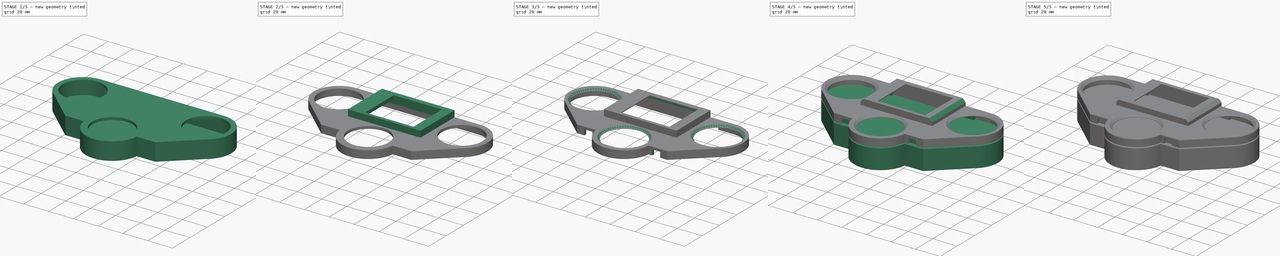
[diagram: build sequence overview — one tinted view per stage of 5, left to right]
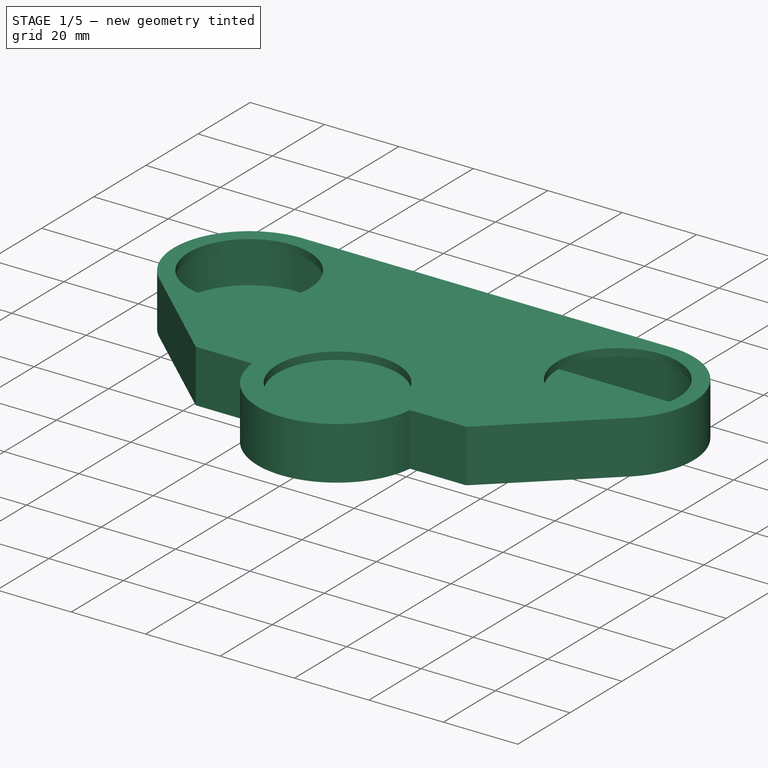
[diagram: stage 1 of 5 — iso view after this stage's code; geometry added in this stage tinted green]
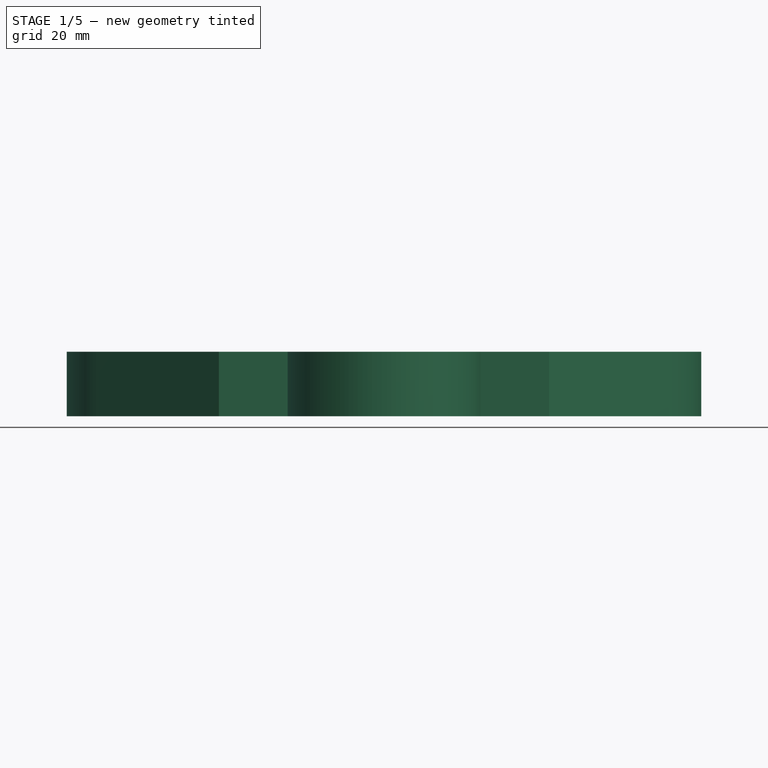
[diagram: stage 1 of 5 — front view after this stage's code; geometry added in this stage tinted green]
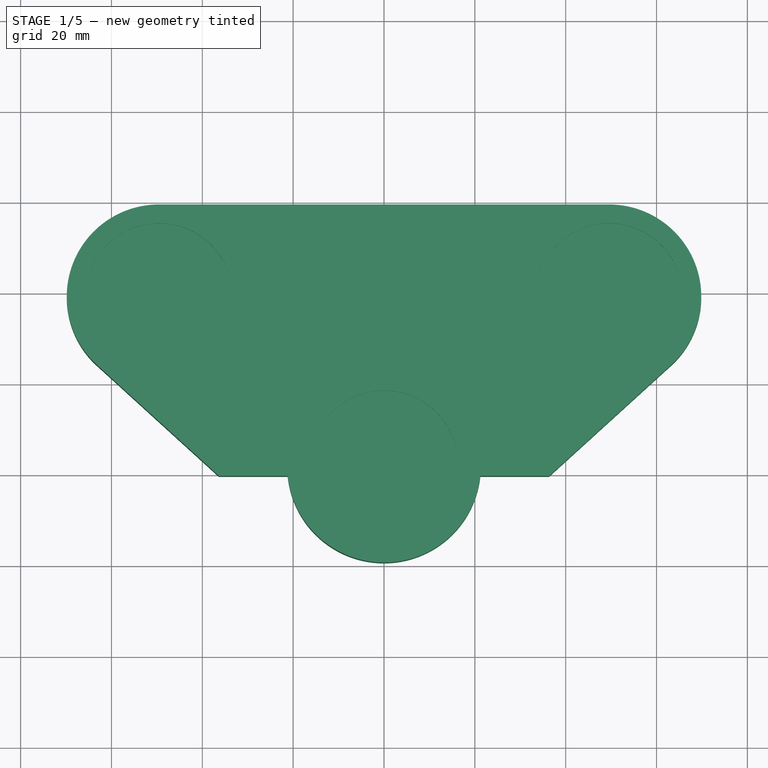
[diagram: stage 1 of 5 — top view after this stage's code; geometry added in this stage tinted green]
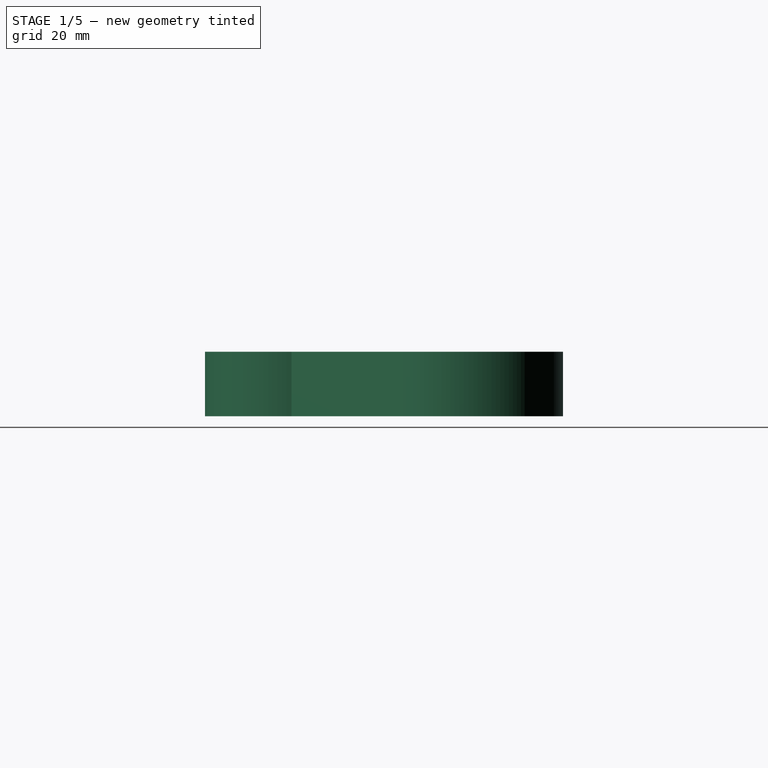
[diagram: stage 1 of 5 — right view after this stage's code; geometry added in this stage tinted green]
FCSTD DOCUMENT  (FreeCAD 0.16R6692 (Git))
Label: OTS2_3
License: All rights reserved
LicenseURL: http://en.wikipedia.org/wiki/All_rights_reserved
objects: Sketcher::SketchObject×10, Part::Feature×8, PartDesign::Pad×5, PartDesign::Pocket×5, Part::Cut×3, PartDesign::Chamfer×3, PartDesign::Fillet×3, Part::Offset×2, Part::Box×1
note: 50 computed .brp shape members not serialized (recipe doc carries the construction recipe); baked Part::Feature solids carry a one-line shape summary decoded from their .brp

FEATURE [PartDesign::Pad] Pad
  Length = 10.16
  Length2 = 100
  Placement = pos=(0,0,4.318) rot=(0,0,1;0rad)
  Reversed = true
  Sketch = -> Sketch
  Type = 0
FEATURE [Part::Offset] Offset
  Fill = false
  Intersection = true
  Join = 2
  Mode = 0
  SelfIntersection = false
  Source = -> Pad
  Value = 2.032
FEATURE [Part::Cut] Cut
  Base = -> Offset
  Tool = -> Pad
FEATURE [Sketcher::SketchObject] Sketch002
  Placement = pos=(0,0,6.35) rot=(0,0,1;0rad)
  Support = -> Cut [Face4]
  sketch-geometry (3):
    g0: Circle CenterX=-49.53 CenterY=19.05 CenterZ=0 NormalX=0 NormalY=0 NormalZ=1 Radius=16.256
    g1: Circle CenterX=49.53 CenterY=19.05 CenterZ=0 NormalX=0 NormalY=0 NormalZ=1 Radius=16.256
    g2: Circle CenterX=0 CenterY=-17.78 CenterZ=0 NormalX=0 NormalY=0 NormalZ=1 Radius=16.256
  constraints (8):
    c: Radius(g0) = 16.256
    c: Equal(g1,g0)
    c: Radius(g2) = 16.256
    c: DistanceX(g0,g1) = 99.06
    c: Symmetric(g0,g1,g-2)
    c: DistanceX(g2,g-1) = 0
    c: DistanceY(g2,g1) = 36.83
    c: DistanceY(g-1,g0) = 19.05
FEATURE [PartDesign::Pocket] Pocket
  Length = 4.99999
  Sketch = -> Sketch002
  Type = 2
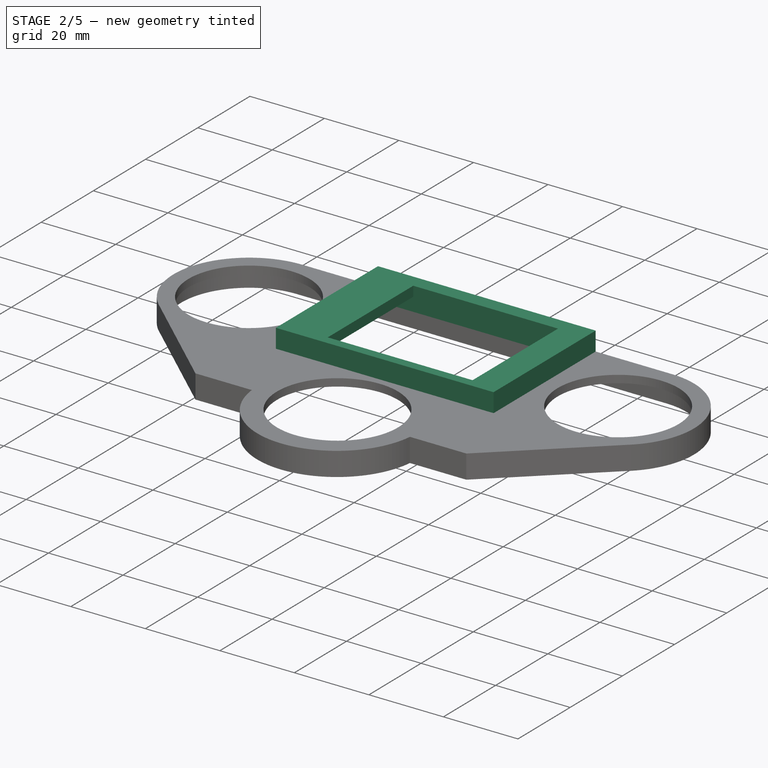
[diagram: stage 2 of 5 — iso view after this stage's code; geometry added in this stage tinted green]
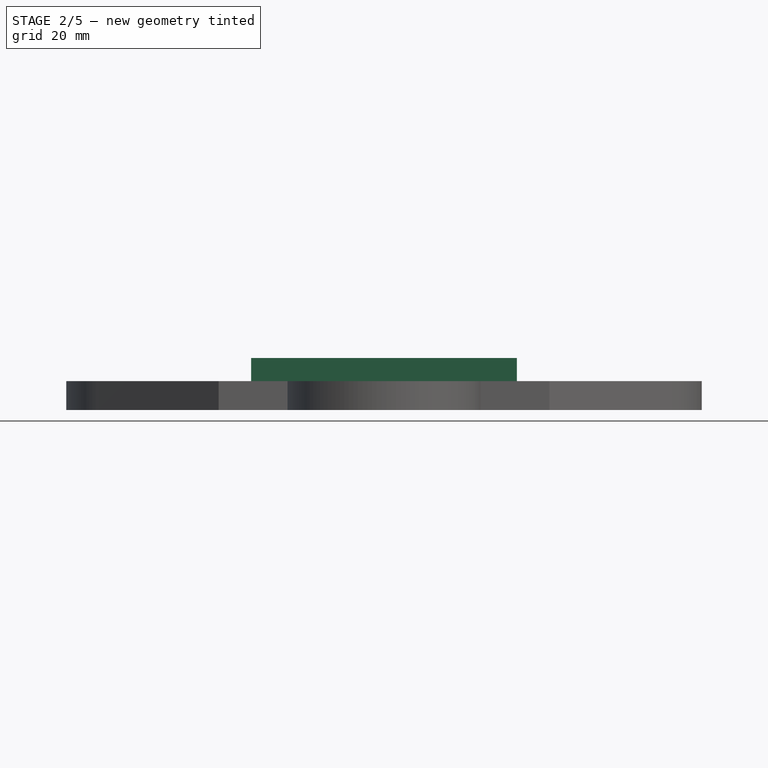
[diagram: stage 2 of 5 — front view after this stage's code; geometry added in this stage tinted green]
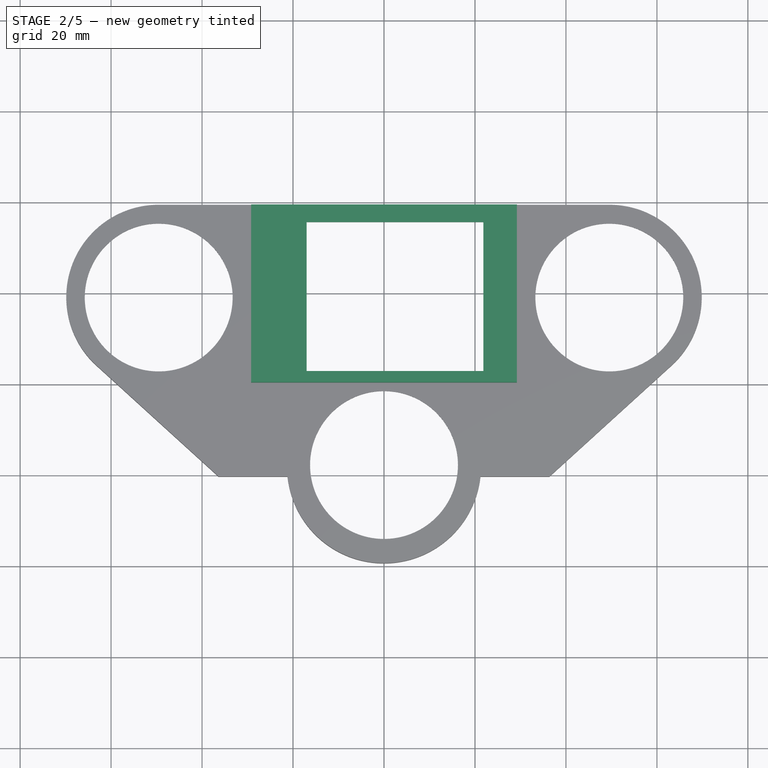
[diagram: stage 2 of 5 — top view after this stage's code; geometry added in this stage tinted green]
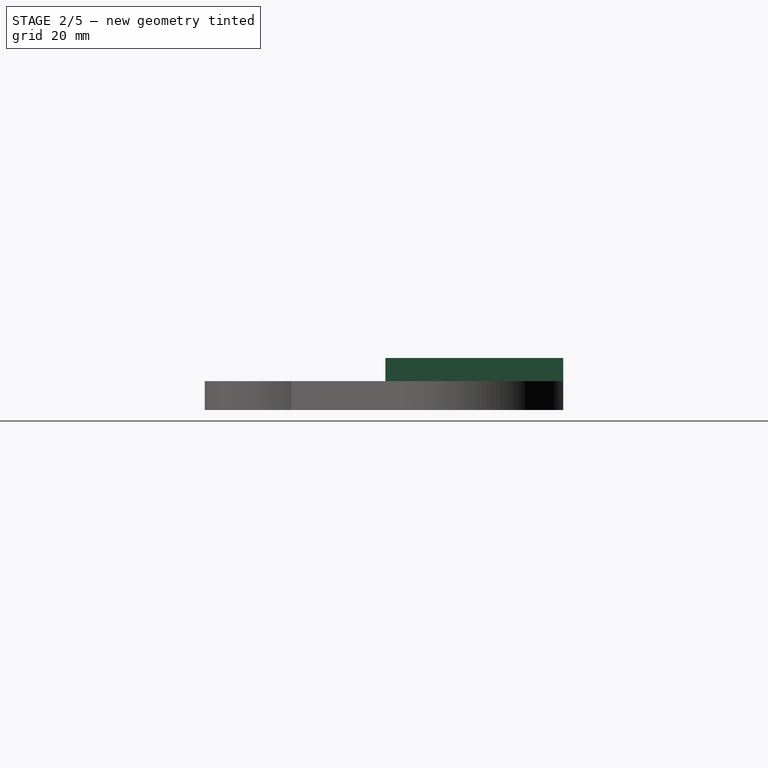
[diagram: stage 2 of 5 — right view after this stage's code; geometry added in this stage tinted green]
FEATURE [Part::Feature] Part__Feature  label="Pcb"
  Placement = pos=(-92.0753,59.69,0) rot=(0,0,1;0rad)
  shape: bbox 134.6 x 73.66 x 1.6 mm, 243 faces (baked)
FEATURE [Part::Feature] Part__Feature001  label="dip_sw_smd_"
  Placement = pos=(27.9397,-12.7,0) rot=(0,0,1;3.14159rad)
  shape: bbox 7.62 x 5.08 x 4.2 mm, 141 faces (baked)
FEATURE [Part::Feature] Part__Feature002  label="LCD"
  Placement = pos=(0,19.05,1.143) rot=(0,0,-1;1.5708rad)
  shape: bbox 56 x 34.8 x 11.3 mm, 149 faces (baked)
FEATURE [Part::Feature] Part__Feature003  label="M0_"
  Placement = pos=(27.9397,11.43,2) rot=(0.707107,-0.707107,0;3.14159rad)
  shape: bbox 22.93 x 51.59 x 14.94 mm, 1337 faces (baked)
FEATURE [Part::Feature] Part__Feature004  label="SW_smd_"
  Placement = pos=(43.8147,-0.635,-1.6) rot=(0,1,0;3.14159rad)
  shape: bbox 7 x 9 x 4.3 mm, 91 faces (baked)
FEATURE [Part::Feature] Part__Feature033  label="ProMini"
  Placement = pos=(-6.35032,20.32,-4.6) rot=(0.707107,0.707107,0;3.14159rad)
  shape: bbox 17.78 x 33.02 x 3.2 mm, 1990 faces (baked)
FEATURE [Part::Feature] Part__Feature034  label="Power"
  Placement = pos=(9.52468,33.655,-1.6) rot=(0.707107,0.707107,0;3.14159rad)
  shape: bbox 12 x 9.1 x 18 mm, 35 faces (baked)
FEATURE [Part::Feature] Part__Feature035  label="SW_smd_001"
  Placement = pos=(-43.8153,-0.635,-1.6) rot=(0,1,0;3.14159rad)
  shape: bbox 7 x 9 x 4.3 mm, 91 faces (baked)
FEATURE [Sketcher::SketchObject] Sketch
  Placement = pos=(0,0,4.318) rot=(0,0,1;0rad)
  sketch-geometry (8):
    g0: LineSegment StartX=-49.53 StartY=37.4142 StartZ=0 EndX=49.53 EndY=37.4142 EndZ=0
    g1: ArcOfCircle CenterX=49.53 CenterY=19.1262 CenterZ=0 NormalX=0 NormalY=0 NormalZ=1 Radius=18.288 StartAngle=5.41052 EndAngle=7.85398
    g2: LineSegment StartX=61.2853 StartY=5.11678 StartZ=0 EndX=35.5583 EndY=-18.288 EndZ=0
    g3: LineSegment StartX=35.5583 StartY=-18.288 StartZ=0 EndX=19.3023 EndY=-18.288 EndZ=0
    g4: ArcOfCircle CenterX=0 CenterY=-18.034 CenterZ=0 NormalX=0 NormalY=0 NormalZ=1 Radius=19.304 StartAngle=3.15475 EndAngle=6.27003
    g5: LineSegment StartX=-19.3023 StartY=-18.288 StartZ=0 EndX=-35.5583 EndY=-18.288 EndZ=0
    g6: LineSegment StartX=-35.5583 StartY=-18.288 StartZ=0 EndX=-61.2853 EndY=5.11678 EndZ=0
    g7: ArcOfCircle CenterX=-49.53 CenterY=19.1262 CenterZ=0 NormalX=0 NormalY=0 NormalZ=1 Radius=18.288 StartAngle=1.5708 EndAngle=4.01426
  constraints (26):
    c: DistanceX(g0,g0) = 99.06
    c: Symmetric(g0,g0,g-2)
    c: DistanceX(g7,g1) = 99.06
    c: Symmetric(g7,g1,g-2)
    c: Radius(g7) = 18.288
    c: Equal(g7,g1)
    c: Coincident(g0,g7)
    c: Coincident(g0,g1)
    c: Radius(g4) = 19.304
    c: Coincident(g3,g4)
    c: Coincident(g4,g5)
    c: Horizontal(g5)
    c: Horizontal(g3)
    c: DistanceY(g3,g4) = 0
    c: DistanceY(g3,g4) = 0.254
    c: Coincident(g5,g6)
    c: Coincident(g6,g7)
    c: Coincident(g2,g3)
    c: Coincident(g1,g2)
    c: DistanceX(g5,g5) = 16.256
    c: Equal(g5,g3)
    c: Symmetric(g4,g3,g-2)
    c: DistanceY(g-1,g0) = 37.4142
    c: DistanceY(g4,g-1) = 18.288
    c: Angle(g7) = 2.44346
    c: Angle(g1) = 2.44346
FEATURE [Part::Box] Box  label="Cube"
  Height = 12.7
  Length = 152.4
  Placement = pos=(-76.2,-50.8,-12.7) rot=(0,0,1;0rad)
  Width = 101.6
FEATURE [Sketcher::SketchObject] Sketch003
  ExternalGeometry = -> [Pocket]
  Placement = pos=(0,0,6.35) rot=(0,0,1;0rad)
  Support = -> Pocket [Face4]
  sketch-geometry (4):
    g0: LineSegment StartX=-29.21 StartY=39.4462 StartZ=0 EndX=29.21 EndY=39.4462 EndZ=0
    g1: LineSegment StartX=29.21 StartY=39.4462 StartZ=0 EndX=29.21 EndY=0.3302 EndZ=0
    g2: LineSegment StartX=29.21 StartY=0.3302 StartZ=0 EndX=-29.21 EndY=0.3302 EndZ=0
    g3: LineSegment StartX=-29.21 StartY=0.3302 StartZ=0 EndX=-29.21 EndY=39.4462 EndZ=0
  constraints (12):
    c: Coincident(g0,g1)
    c: Coincident(g1,g2)
    c: Coincident(g2,g3)
    c: Coincident(g3,g0)
    c: Horizontal(g0)
    c: Horizontal(g2)
    c: Vertical(g1)
    c: Vertical(g3)
    c: DistanceY(g0,g-3) = 0
    c: DistanceY(g3,g3) = 39.116
    c: DistanceX(g2,g2) = 58.42
    c: Symmetric(g0,g0,g-2)
FEATURE [PartDesign::Pad] Pad001
  Length = 5.08
  Length2 = 100
  Sketch = -> Sketch003
  Type = 0
FEATURE [Sketcher::SketchObject] Sketch001
  Placement = pos=(0,0,11.43) rot=(0,0,1;0rad)
  Support = -> Pad001 [Face1]
  sketch-geometry (4):
    g0: LineSegment StartX=-17.018 StartY=35.56 StartZ=0 EndX=21.844 EndY=35.56 EndZ=0
    g1: LineSegment StartX=21.844 StartY=35.56 StartZ=0 EndX=21.844 EndY=2.794 EndZ=0
    g2: LineSegment StartX=21.844 StartY=2.794 StartZ=0 EndX=-17.018 EndY=2.794 EndZ=0
    g3: LineSegment StartX=-17.018 StartY=2.794 StartZ=0 EndX=-17.018 EndY=35.56 EndZ=0
  constraints (12):
    c: Coincident(g0,g1)
    c: Coincident(g1,g2)
    c: Coincident(g2,g3)
    c: Coincident(g3,g0)
    c: Horizontal(g0)
    c: Horizontal(g2)
    c: Vertical(g1)
    c: Vertical(g3)
    c: DistanceX(g0,g0) = 38.862
    c: DistanceY(g3,g3) = 32.766
    c: DistanceX(g0,g-1) = 17.018
    c: DistanceY(g-1,g0) = 35.56
FEATURE [PartDesign::Pocket] Pocket001
  Length = 4.99999
  Sketch = -> Sketch001
  Type = 2
FEATURE [Part::Cut] Cut001
  Base = -> Pocket001
  Tool = -> Box
FEATURE [Sketcher::SketchObject] Sketch005
  Placement = pos=(0,0,4.318) rot=(1,0,0;3.14159rad)
  Support = -> Cut001 [Face12]
  sketch-geometry (4):
    g0: LineSegment StartX=-28.448 StartY=-1.3716 StartZ=0 EndX=28.448 EndY=-1.3716 EndZ=0
    g1: LineSegment StartX=28.448 StartY=-1.3716 StartZ=0 EndX=28.448 EndY=-36.9316 EndZ=0
    g2: LineSegment StartX=28.448 StartY=-36.9316 StartZ=0 EndX=-28.448 EndY=-36.9316 EndZ=0
    g3: LineSegment StartX=-28.448 StartY=-36.9316 StartZ=0 EndX=-28.448 EndY=-1.3716 EndZ=0
  constraints (12):
    c: Coincident(g0,g1)
    c: Coincident(g1,g2)
    c: Coincident(g2,g3)
    c: Coincident(g3,g0)
    c: Horizontal(g0)
    c: Horizontal(g2)
    c: Vertical(g1)
    c: Vertical(g3)
    c: DistanceX(g0,g0) = 56.896
    c: Symmetric(g0,g0,g-2)
    c: DistanceY(g3,g3) = 35.56
    c: DistanceY(g0,g-1) = 1.3716
FEATURE [PartDesign::Pocket] Pocket002
  Length = 4.445
  Sketch = -> Sketch005
  Type = 0
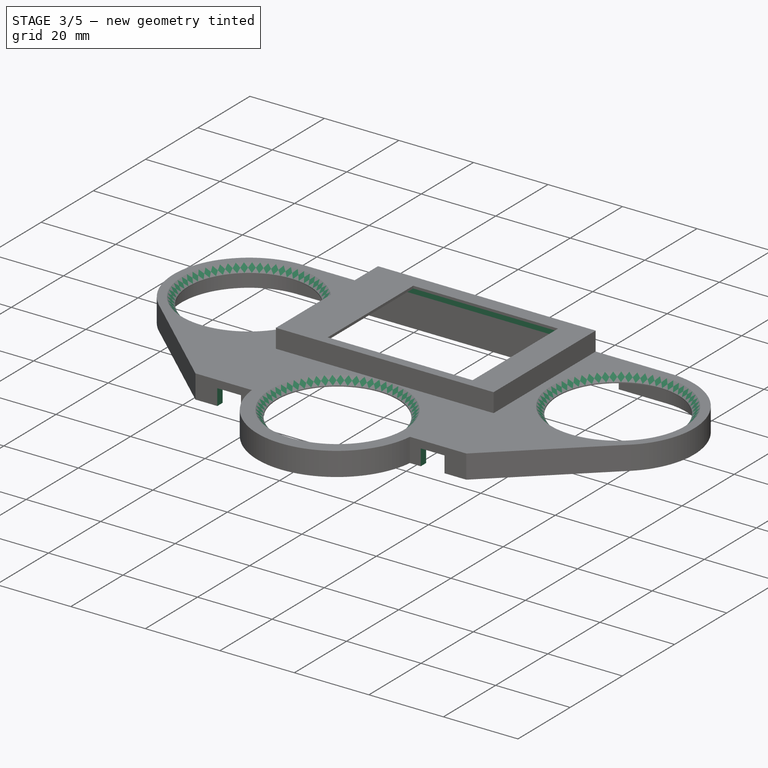
[diagram: stage 3 of 5 — iso view after this stage's code; geometry added in this stage tinted green]
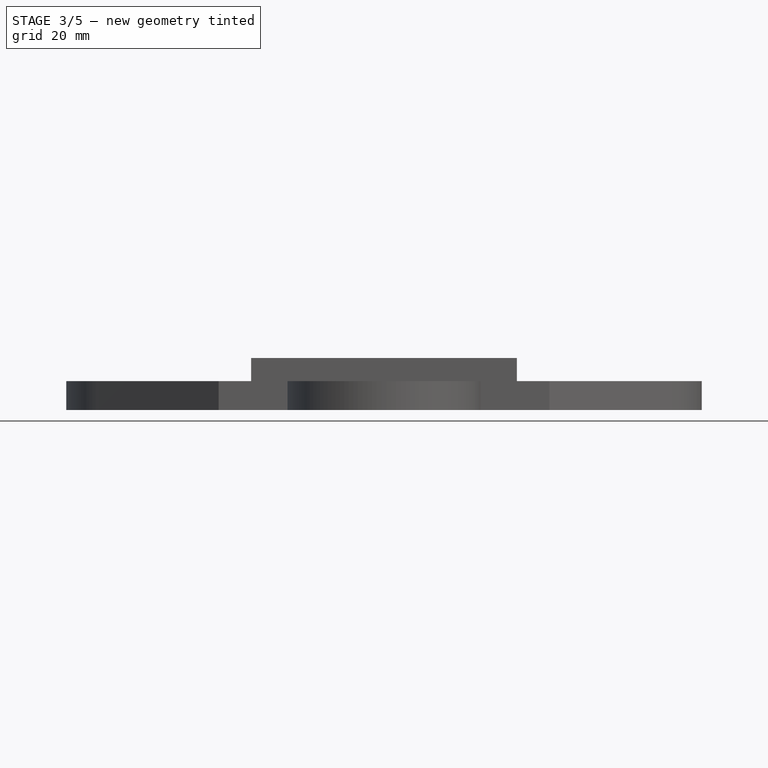
[diagram: stage 3 of 5 — front view after this stage's code; geometry added in this stage tinted green]
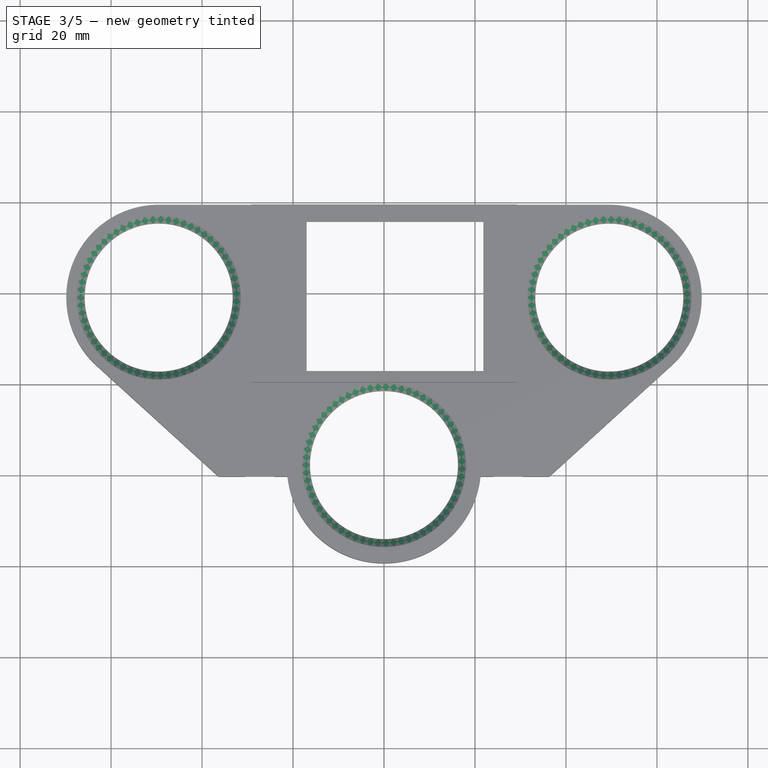
[diagram: stage 3 of 5 — top view after this stage's code; geometry added in this stage tinted green]
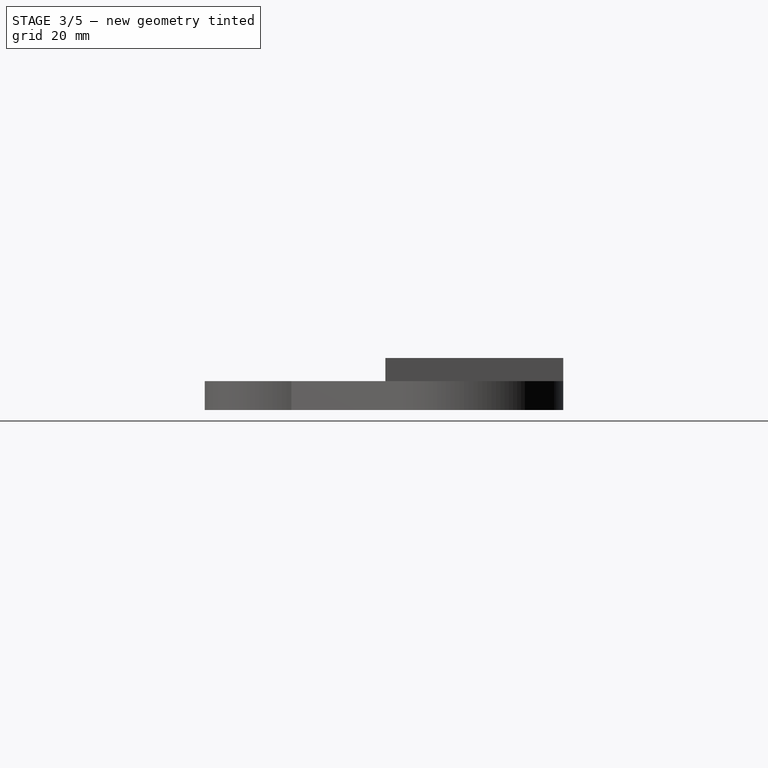
[diagram: stage 3 of 5 — right view after this stage's code; geometry added in this stage tinted green]
FEATURE [Sketcher::SketchObject] Sketch006
  Placement = pos=(0,0,8.763) rot=(1,0,0;3.14159rad)
  Support = -> Pocket002 [Face12]
  sketch-geometry (4):
    g0: LineSegment StartX=-23.495 StartY=-1.27 StartZ=0 EndX=23.495 EndY=-1.27 EndZ=0
    g1: LineSegment StartX=23.495 StartY=-1.27 StartZ=0 EndX=23.495 EndY=-36.83 EndZ=0
    g2: LineSegment StartX=23.495 StartY=-36.83 StartZ=0 EndX=-23.495 EndY=-36.83 EndZ=0
    g3: LineSegment StartX=-23.495 StartY=-36.83 StartZ=0 EndX=-23.495 EndY=-1.27 EndZ=0
  constraints (12):
    c: Coincident(g0,g1)
    c: Coincident(g1,g2)
    c: Coincident(g2,g3)
    c: Coincident(g3,g0)
    c: Horizontal(g0)
    c: Horizontal(g2)
    c: Vertical(g1)
    c: Vertical(g3)
    c: DistanceX(g0,g0) = 46.99
    c: DistanceY(g3,g3) = 35.56
    c: Symmetric(g0,g0,g-2)
    c: DistanceY(g2,g-1) = 36.83
FEATURE [PartDesign::Pocket] Pocket003
  Length = 2
  Sketch = -> Sketch006
  Type = 0
FEATURE [PartDesign::Chamfer] Chamfer
  Base = -> Pocket003 [Edge38,Edge37,Edge39]
  Size = 1.778
FEATURE [Sketcher::SketchObject] Sketch007
  Placement = pos=(0,0,4.318) rot=(1,0,0;3.14159rad)
  Support = -> Chamfer [Face22]
  sketch-geometry (2):
    g0: Circle CenterX=-36.83 CenterY=11.43 CenterZ=0 NormalX=0 NormalY=0 NormalZ=1 Radius=2.54
    g1: Circle CenterX=36.83 CenterY=11.43 CenterZ=0 NormalX=0 NormalY=0 NormalZ=1 Radius=2.54
  constraints (6):
    c: Radius(g0) = 2.54
    c: Equal(g0,g1)
    c: DistanceY(g0,g1) = 0
    c: Symmetric(g0,g1,g-2)
    c: DistanceX(g0,g1) = 73.66
    c: DistanceY(g-1,g0) = 11.43
FEATURE [PartDesign::Pad] Pad002
  Length = 4.318
  Length2 = 100
  Sketch = -> Sketch007
  Type = 0
FEATURE [Sketcher::SketchObject] Sketch012
  ExternalGeometry = -> [Pad002]
  Placement = pos=(0,0,0) rot=(1,0,0;3.14159rad)
  Support = -> Pad002 [Face17]
  sketch-geometry (16):
    g0: LineSegment StartX=-30.48 StartY=20.32 StartZ=0 EndX=-24.13 EndY=20.32 EndZ=0
    g1: LineSegment StartX=-24.13 StartY=20.32 StartZ=0 EndX=-24.13 EndY=18.288 EndZ=0
    g2: LineSegment StartX=-24.13 StartY=18.288 StartZ=0 EndX=-30.48 EndY=18.288 EndZ=0
    g3: LineSegment StartX=-30.48 StartY=18.288 StartZ=0 EndX=-30.48 EndY=20.32 EndZ=0
    g4: LineSegment StartX=24.13 StartY=20.32 StartZ=0 EndX=30.48 EndY=20.32 EndZ=0
    g5: LineSegment StartX=30.48 StartY=20.32 StartZ=0 EndX=30.48 EndY=18.288 EndZ=0
    g6: LineSegment StartX=30.48 StartY=18.288 StartZ=0 EndX=24.13 EndY=18.288 EndZ=0
    g7: LineSegment StartX=24.13 StartY=18.288 StartZ=0 EndX=24.13 EndY=20.32 EndZ=0
    g8: LineSegment StartX=-36.83 StartY=-39.4462 StartZ=0 EndX=-30.48 EndY=-39.4462 EndZ=0
    g9: LineSegment StartX=-30.48 StartY=-39.4462 StartZ=0 EndX=-30.48 EndY=-37.4142 EndZ=0
    g10: LineSegment StartX=-30.48 StartY=-37.4142 StartZ=0 EndX=-36.83 EndY=-37.4142 EndZ=0
    g11: LineSegment StartX=-36.83 StartY=-37.4142 StartZ=0 EndX=-36.83 EndY=-39.4462 EndZ=0
    g12: LineSegment StartX=36.83 StartY=-39.4462 StartZ=0 EndX=30.48 EndY=-39.4462 EndZ=0
    g13: LineSegment StartX=30.48 StartY=-39.4462 StartZ=0 EndX=30.48 EndY=-37.4142 EndZ=0
    g14: LineSegment StartX=30.48 StartY=-37.4142 StartZ=0 EndX=36.83 EndY=-37.4142 EndZ=0
    g15: LineSegment StartX=36.83 StartY=-37.4142 StartZ=0 EndX=36.83 EndY=-39.4462 EndZ=0
  constraints (46):
    c: Coincident(g0,g1)
    c: Coincident(g1,g2)
    c: Coincident(g2,g3)
    c: Coincident(g3,g0)
    c: Horizontal(g0)
    c: Horizontal(g2)
    c: Vertical(g1)
    c: Vertical(g3)
    c: Coincident(g4,g5)
    c: Coincident(g5,g6)
    c: Coincident(g6,g7)
    c: Coincident(g7,g4)
    c: Horizontal(g4)
    c: Horizontal(g6)
    c: Vertical(g5)
    c: Vertical(g7)
    c: Coincident(g8,g9)
    c: Coincident(g9,g10)
    c: Coincident(g10,g11)
    c: Coincident(g11,g8)
    c: Horizontal(g8)
    c: Horizontal(g10)
    c: Vertical(g9)
    c: Vertical(g11)
    c: Coincident(g12,g13)
    c: Coincident(g13,g14)
    c: Coincident(g14,g15)
    c: Coincident(g15,g12)
    c: Horizontal(g12)
    c: Horizontal(g14)
    c: Vertical(g13)
    c: Vertical(g15)
    c: DistanceX(g0,g0) = 6.35
    c: Equal(g0,g4)
    c: Equal(g4,g14)
    c: Equal(g14,g10)
    c: DistanceY(g3,g3) = 2.032
    c: Equal(g3,g7)
    c: Equal(g7,g13)
    c: Equal(g13,g11)
    c: Symmetric(g0,g4,g-2)
    c: Symmetric(g9,g13,g-2)
    c: DistanceX(g0,g-1) = 24.13
    c: DistanceY(g-3,g1) = 0
    c: DistanceX(g8,g-1) = 30.48
    c: DistanceY(g-4,g8) = 0
FEATURE [PartDesign::Pocket] Pocket004
  Length = 0
  Sketch = -> Sketch012
  Type = 3
  UpToFace = -> Pad002 [Face22]
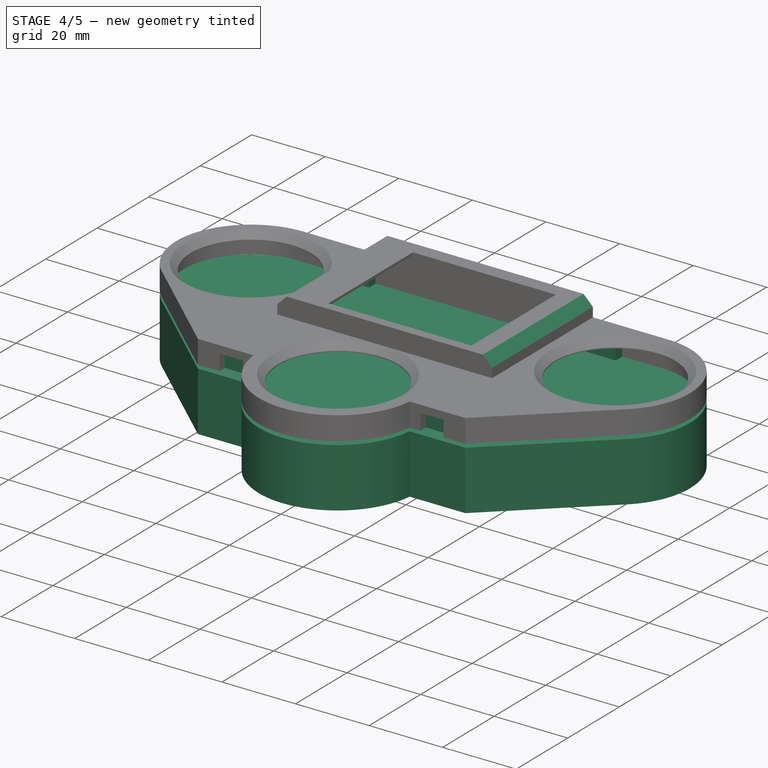
[diagram: stage 4 of 5 — iso view after this stage's code; geometry added in this stage tinted green]
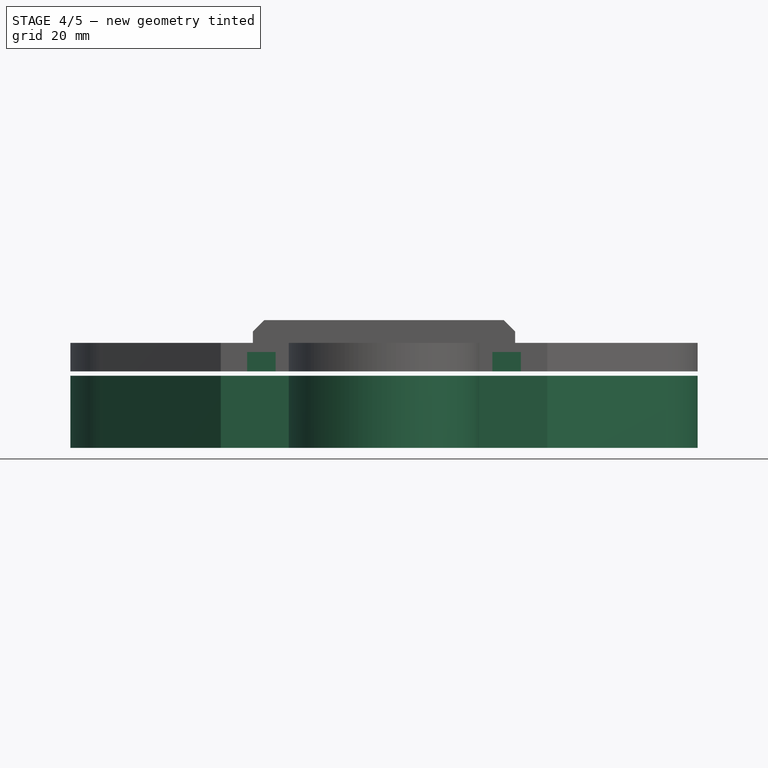
[diagram: stage 4 of 5 — front view after this stage's code; geometry added in this stage tinted green]
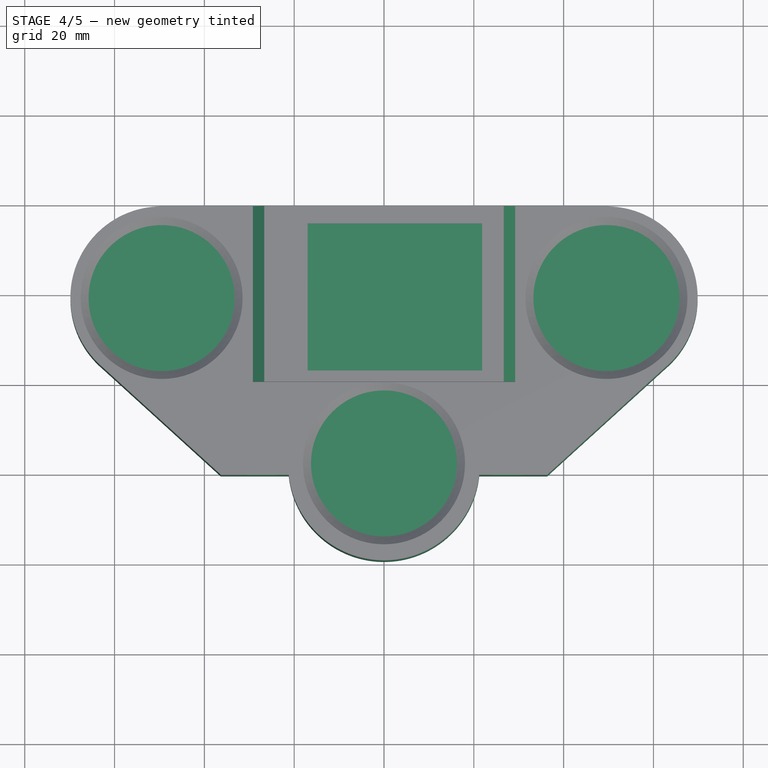
[diagram: stage 4 of 5 — top view after this stage's code; geometry added in this stage tinted green]
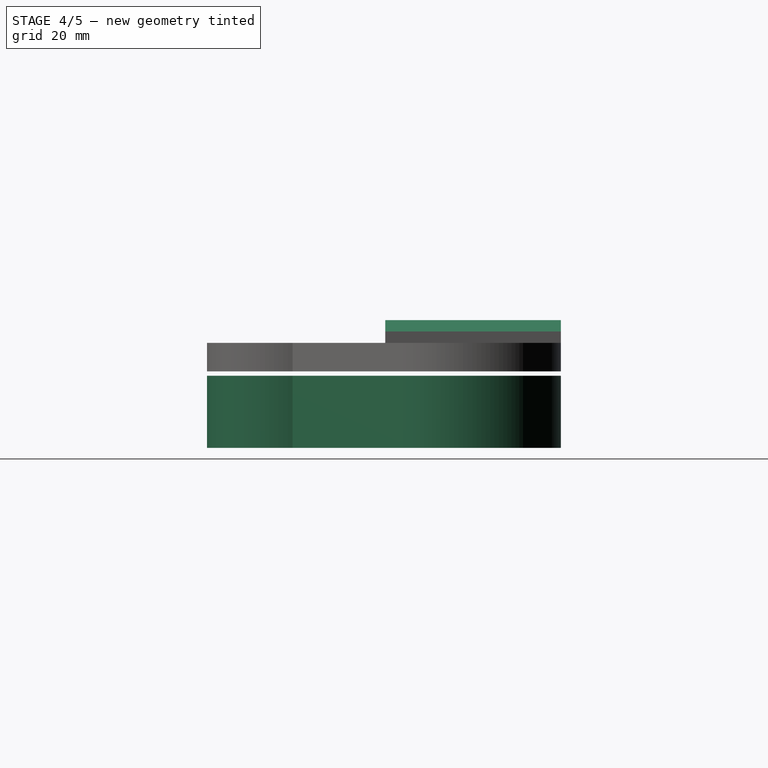
[diagram: stage 4 of 5 — right view after this stage's code; geometry added in this stage tinted green]
FEATURE [Sketcher::SketchObject] Sketch013
  ExternalGeometry = -> [Pocket004]
  Placement = pos=(0,0,4.318) rot=(1,0,0;3.14159rad)
  Support = -> Pocket004 [Face37]
  sketch-geometry (16):
    g0: LineSegment StartX=-38.608 StartY=-34.8742 StartZ=0 EndX=-28.448 EndY=-34.8742 EndZ=0
    g1: LineSegment StartX=-28.448 StartY=-34.8742 StartZ=0 EndX=-28.448 EndY=-37.4142 EndZ=0
    g2: LineSegment StartX=-28.448 StartY=-37.4142 StartZ=0 EndX=-38.608 EndY=-37.4142 EndZ=0
    g3: LineSegment StartX=-38.608 StartY=-37.4142 StartZ=0 EndX=-38.608 EndY=-34.8742 EndZ=0
    g4: LineSegment StartX=28.448 StartY=-34.8742 StartZ=0 EndX=38.608 EndY=-34.8742 EndZ=0
    g5: LineSegment StartX=38.608 StartY=-34.8742 StartZ=0 EndX=38.608 EndY=-37.4142 EndZ=0
    g6: LineSegment StartX=38.608 StartY=-37.4142 StartZ=0 EndX=28.448 EndY=-37.4142 EndZ=0
    g7: LineSegment StartX=28.448 StartY=-37.4142 StartZ=0 EndX=28.448 EndY=-34.8742 EndZ=0
    g8: LineSegment StartX=21.844 StartY=18.288 StartZ=0 EndX=32.004 EndY=18.288 EndZ=0
    g9: LineSegment StartX=32.004 StartY=18.288 StartZ=0 EndX=32.004 EndY=15.748 EndZ=0
    g10: LineSegment StartX=32.004 StartY=15.748 StartZ=0 EndX=21.844 EndY=15.748 EndZ=0
    g11: LineSegment StartX=21.844 StartY=15.748 StartZ=0 EndX=21.844 EndY=18.288 EndZ=0
    g12: LineSegment StartX=-21.844 StartY=18.288 StartZ=0 EndX=-32.004 EndY=18.288 EndZ=0
    g13: LineSegment StartX=-32.004 StartY=18.288 StartZ=0 EndX=-32.004 EndY=15.748 EndZ=0
    g14: LineSegment StartX=-32.004 StartY=15.748 StartZ=0 EndX=-21.844 EndY=15.748 EndZ=0
    g15: LineSegment StartX=-21.844 StartY=15.748 StartZ=0 EndX=-21.844 EndY=18.288 EndZ=0
  constraints (43):
    c: Coincident(g0,g1)
    c: Coincident(g1,g2)
    c: Coincident(g2,g3)
    c: Coincident(g3,g0)
    c: Horizontal(g0)
    c: Horizontal(g2)
    c: Vertical(g1)
    c: Vertical(g3)
    c: Coincident(g4,g5)
    c: Coincident(g5,g6)
    c: Coincident(g6,g7)
    c: Coincident(g7,g4)
    c: Horizontal(g4)
    c: Horizontal(g6)
    c: Vertical(g5)
    c: Vertical(g7)
    c: DistanceY(g7,g7) = 2.54
    c: Equal(g1,g7)
    c: DistanceX(g4,g4) = 10.16
    c: Equal(g4,g0)
    c: Symmetric(g6,g1,g-2)
    c: Coincident(g8,g9)
    c: Coincident(g9,g10)
    c: Coincident(g10,g11)
    c: Coincident(g11,g8)
    c: Horizontal(g8)
    c: Horizontal(g10)
    c: Vertical(g9)
    c: Vertical(g11)
    c: Coincident(g12,g13)
    c: Coincident(g13,g14)
    c: Coincident(g14,g15)
    c: Coincident(g15,g12)
    c: Horizontal(g12)
    c: Horizontal(g14)
    c: Vertical(g13)
    c: Vertical(g15)
    c: DistanceY(g11,g11) = 2.54
    c: Equal(g11,g15)
    c: DistanceX(g8,g8) = 10.16
    c: Equal(g12,g8)
    c: Symmetric(g14,g10,g-2)
    c: DistanceX(g-1,g10) = 21.844
FEATURE [Sketcher::SketchObject] Sketch014
  Placement = pos=(0,0,-3) rot=(0,0,1;0rad)
  sketch-geometry (8):
    g0: LineSegment StartX=-49.53 StartY=37.4142 StartZ=0 EndX=49.53 EndY=37.4142 EndZ=0
    g1: ArcOfCircle CenterX=49.53 CenterY=19.1262 CenterZ=0 NormalX=0 NormalY=0 NormalZ=1 Radius=18.288 StartAngle=5.41052 EndAngle=7.85398
    g2: LineSegment StartX=61.2853 StartY=5.11678 StartZ=0 EndX=35.5583 EndY=-18.288 EndZ=0
    g3: LineSegment StartX=35.5583 StartY=-18.288 StartZ=0 EndX=19.3023 EndY=-18.288 EndZ=0
    g4: ArcOfCircle CenterX=0 CenterY=-18.034 CenterZ=0 NormalX=0 NormalY=0 NormalZ=1 Radius=19.304 StartAngle=3.15475 EndAngle=6.27003
    g5: LineSegment StartX=-19.3023 StartY=-18.288 StartZ=0 EndX=-35.5583 EndY=-18.288 EndZ=0
    g6: LineSegment StartX=-35.5583 StartY=-18.288 StartZ=0 EndX=-61.2853 EndY=5.11678 EndZ=0
    g7: ArcOfCircle CenterX=-49.53 CenterY=19.1262 CenterZ=0 NormalX=0 NormalY=0 NormalZ=1 Radius=18.288 StartAngle=1.5708 EndAngle=4.01426
  constraints (26):
    c: DistanceX(g0,g0) = 99.06
    c: Symmetric(g0,g0,g-2)
    c: DistanceX(g7,g1) = 99.06
    c: Symmetric(g7,g1,g-2)
    c: Radius(g7) = 18.288
    c: Equal(g7,g1)
    c: Coincident(g0,g7)
    c: Coincident(g0,g1)
    c: Radius(g4) = 19.304
    c: Coincident(g3,g4)
    c: Coincident(g4,g5)
    c: Horizontal(g5)
    c: Horizontal(g3)
    c: DistanceY(g3,g4) = 0
    c: DistanceY(g3,g4) = 0.254
    c: Coincident(g5,g6)
    c: Coincident(g6,g7)
    c: Coincident(g2,g3)
    c: Coincident(g1,g2)
    c: DistanceX(g5,g5) = 16.256
    c: Equal(g5,g3)
    c: Symmetric(g4,g3,g-2)
    c: DistanceY(g-1,g0) = 37.4142
    c: DistanceY(g4,g-1) = 18.288
    c: Angle(g7) = 2.44346
    c: Angle(g1) = 2.44346
FEATURE [PartDesign::Pad] Pad004
  Length = 12
  Length2 = 100
  Placement = pos=(0,0,-3) rot=(0,0,1;0rad)
  Reversed = true
  Sketch = -> Sketch014
  Type = 0
FEATURE [Part::Offset] Offset001
  Fill = false
  Intersection = false
  Join = 2
  Mode = 0
  SelfIntersection = false
  Source = -> Pad004
  Value = 2.032
FEATURE [Part::Cut] Cut002
  Base = -> Offset001
  Tool = -> Pad004
FEATURE [PartDesign::Pad] Pad003
  Length = 4.318
  Length2 = 100
  Sketch = -> Sketch013
  Type = 0
  UpToFace = -> Pocket004 [Face22]
FEATURE [PartDesign::Chamfer] Chamfer001
  Base = -> Pad003 [Edge41,Edge46]
  Size = 2.54
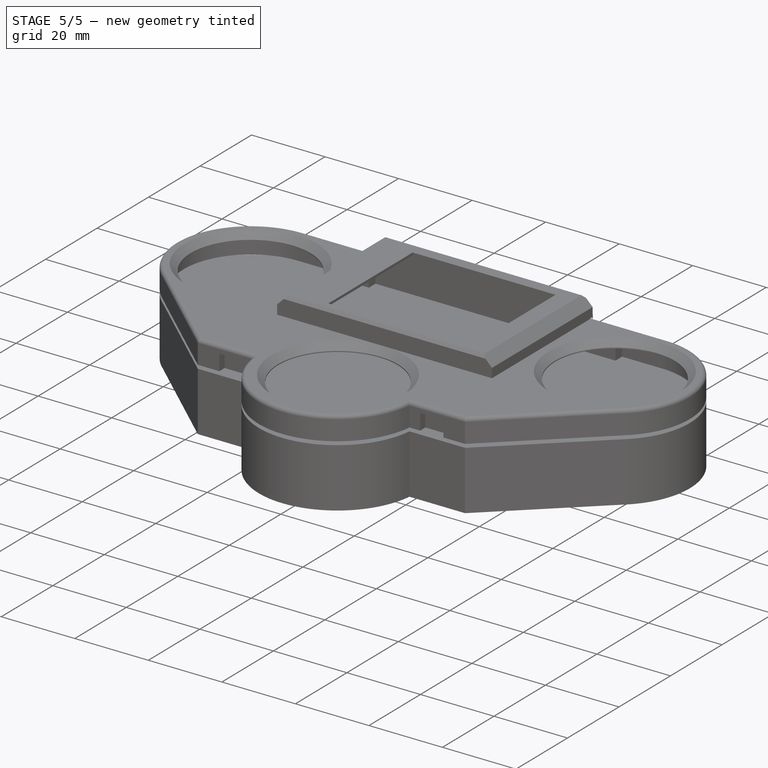
[diagram: stage 5 of 5 — iso view after this stage's code; geometry added in this stage tinted green]
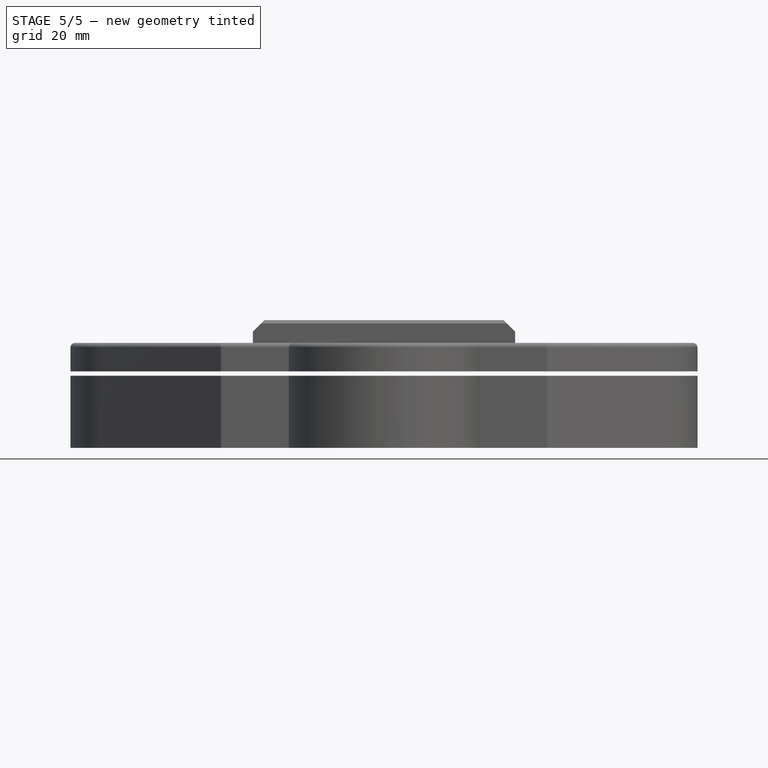
[diagram: stage 5 of 5 — front view after this stage's code; geometry added in this stage tinted green]
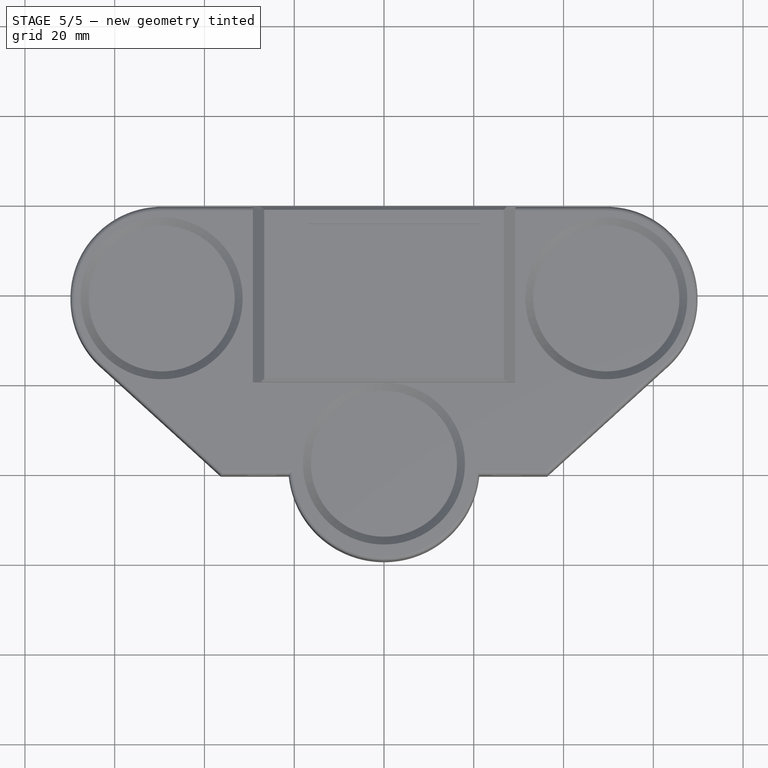
[diagram: stage 5 of 5 — top view after this stage's code; geometry added in this stage tinted green]
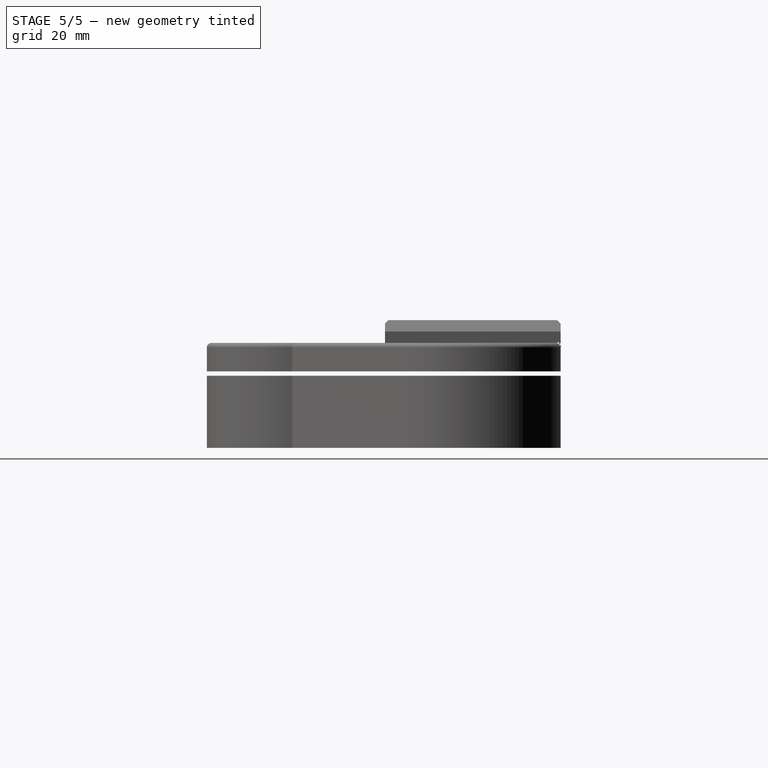
[diagram: stage 5 of 5 — right view after this stage's code; geometry added in this stage tinted green]
FEATURE [PartDesign::Chamfer] Chamfer002
  Base = -> Chamfer001 [Edge8,Edge26]
  Size = 0.762
FEATURE [PartDesign::Fillet] Fillet
  Base = -> Chamfer002 [Edge26,Edge27,Edge28,Edge29]
  Radius = 1.016
FEATURE [PartDesign::Fillet] Fillet001
  Base = -> Fillet [Edge29,Edge27,Edge25,Edge23]
  Radius = 1
FEATURE [PartDesign::Fillet] Fillet002
  Base = -> Fillet001 [Edge95]
  Radius = 1
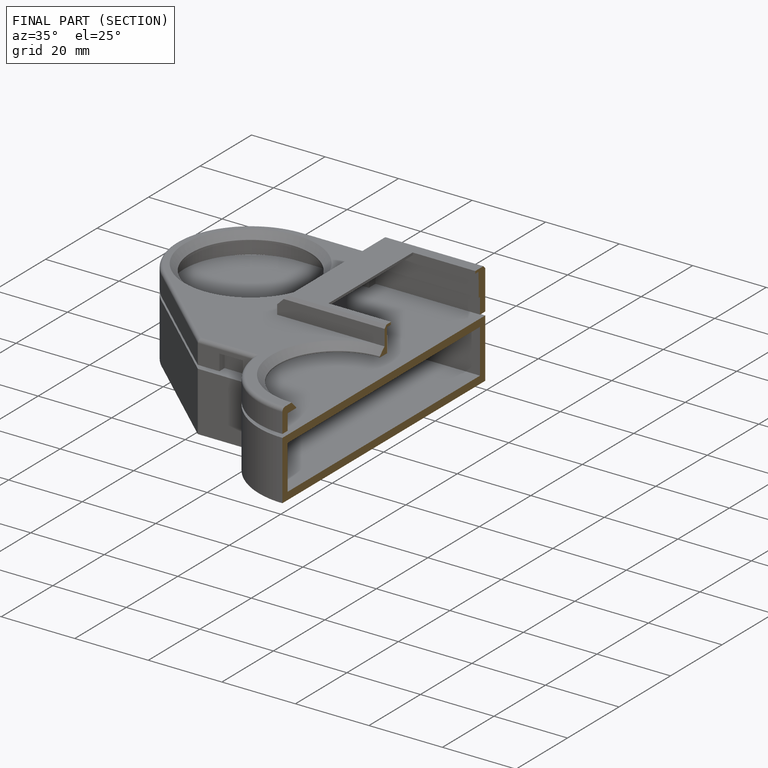
[diagram: finished part — half-section view (interior)]
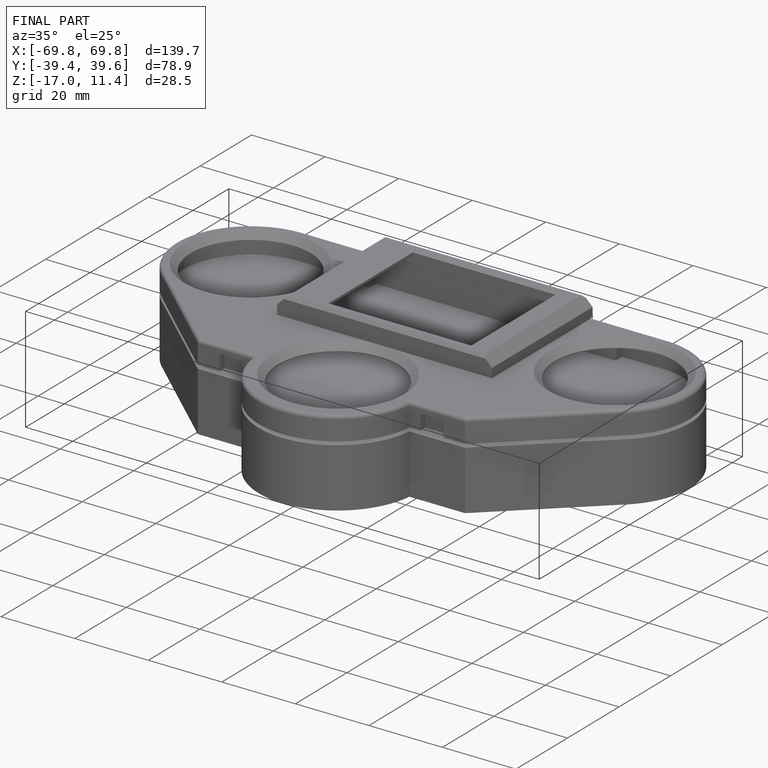
[diagram: finished part — iso view with bounding-box wireframe]
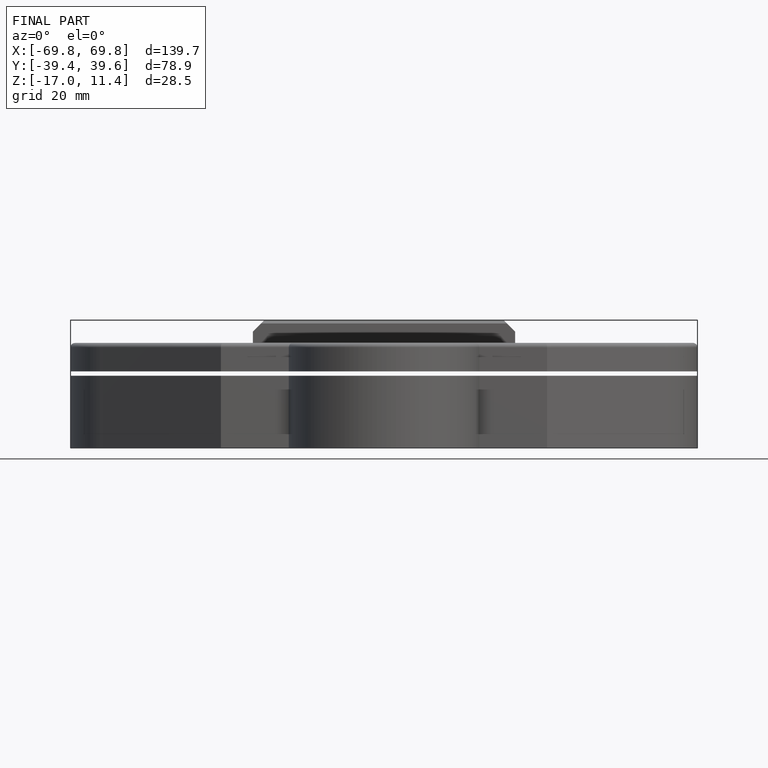
[diagram: finished part — front view with bounding-box wireframe]
